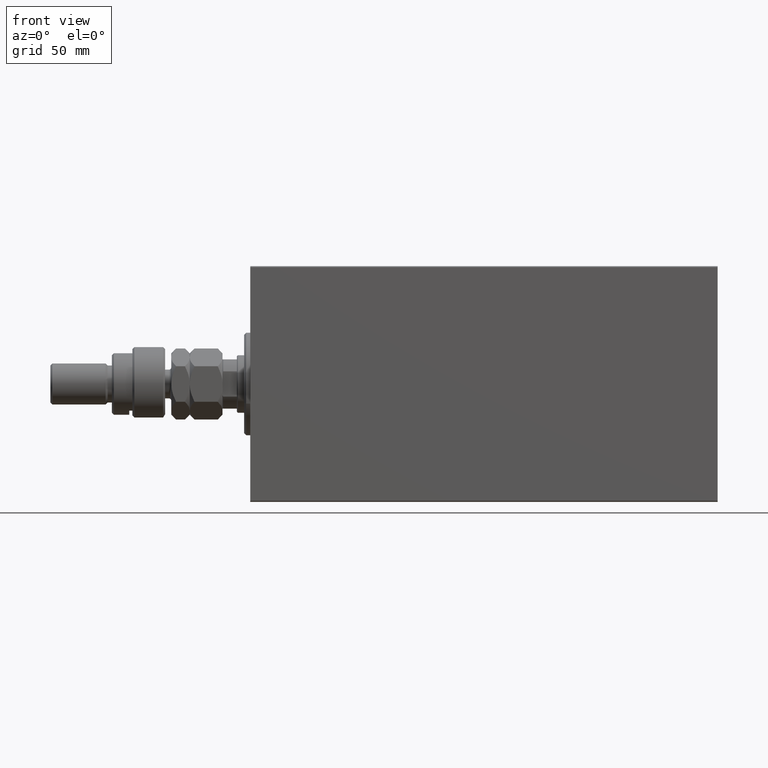
[diagram: clean part render]
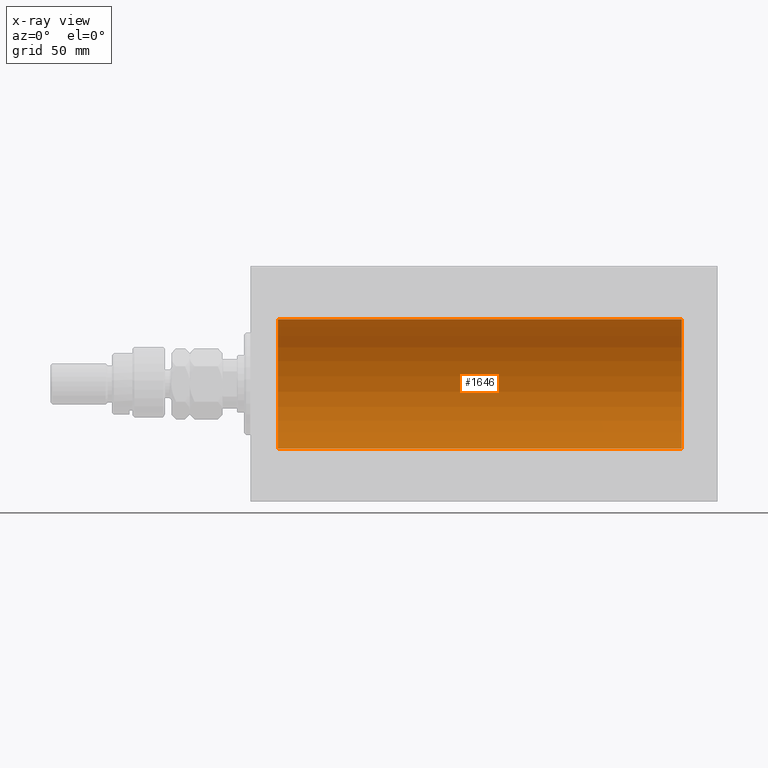
[diagram: x-ray — body ghosted, one internal face saturated and labeled with its STEP entity id]
A machine part, front view, then the same camera in x-ray: the body is ghosted and one INTERNAL B-rep face — a face not visible from any outside direction — is saturated and labeled: STEP entity #1646.
In plain terms, the highlighted cylindrical surface (partial cylindrical patch) has radius 31.5 mm, axis along (-1, -0, -0).
Its self-contained STEP definition (entity closure, byte-faithful):
#32 = CARTESIAN_POINT ( 'NONE',  ( 210.5000000000000000, 0.000000000000000000, 0.000000000000000000 ) ) ;
#1628 = CARTESIAN_POINT ( 'NONE',  ( 210.5000000000000000, 3.857637417314161900E-15, -31.50000000000000000 ) ) ;
#1646 = ADVANCED_FACE ( 'NONE', ( #45500 ), #42431, .F. ) ;
#2614 = CARTESIAN_POINT ( 'NONE',  ( 210.5000000000000000, 0.000000000000000000, 31.50000000000000000 ) ) ;
#3203 = LINE ( 'NONE', #45894, #5734 ) ;
#3725 = AXIS2_PLACEMENT_3D ( 'NONE', #4572, #36884, #15181 ) ;
#4572 = CARTESIAN_POINT ( 'NONE',  ( 13.50000000000001243, 0.000000000000000000, 0.000000000000000000 ) ) ;
#5054 = LINE ( 'NONE', #13050, #26008 ) ;
#5734 = VECTOR ( 'NONE', #46605, 1000.000000000000000 ) ;
#7359 = DIRECTION ( 'NONE',  ( 0.000000000000000000, 0.000000000000000000, 1.000000000000000000 ) ) ;
#10204 = DIRECTION ( 'NONE',  ( -1.000000000000000000, 0.000000000000000000, 0.000000000000000000 ) ) ;
#13050 = CARTESIAN_POINT ( 'NONE',  ( 210.5000000000000000, 3.857637417314161900E-15, -31.50000000000000000 ) ) ;
#13477 = EDGE_CURVE ( 'NONE', #23909, #17164, #5054, .T. ) ;
#14921 = EDGE_CURVE ( 'NONE', #17999, #23909, #44101, .T. ) ;
#15181 = DIRECTION ( 'NONE',  ( 0.000000000000000000, 0.000000000000000000, 1.000000000000000000 ) ) ;
#17164 = VERTEX_POINT ( 'NONE', #44037 ) ;
#17999 = VERTEX_POINT ( 'NONE', #2614 ) ;
#20541 = CARTESIAN_POINT ( 'NONE',  ( 13.50000000000001243, 0.000000000000000000, 31.50000000000000000 ) ) ;
#23187 = ORIENTED_EDGE ( 'NONE', *, *, #46113, .T. ) ;
#23909 = VERTEX_POINT ( 'NONE', #1628 ) ;
#24073 = CIRCLE ( 'NONE', #3725, 31.50000000000000000 ) ;
#24526 = DIRECTION ( 'NONE',  ( -1.000000000000000000, -0.000000000000000000, -0.000000000000000000 ) ) ;
#26008 = VECTOR ( 'NONE', #27008, 1000.000000000000000 ) ;
#26090 = EDGE_CURVE ( 'NONE', #38071, #17164, #24073, .T. ) ;
#27008 = DIRECTION ( 'NONE',  ( -1.000000000000000000, -0.000000000000000000, -0.000000000000000000 ) ) ;
#27527 = AXIS2_PLACEMENT_3D ( 'NONE', #32, #10204, #7359 ) ;
#28305 = CARTESIAN_POINT ( 'NONE',  ( 210.5000000000000000, 0.000000000000000000, 0.000000000000000000 ) ) ;
#34981 = EDGE_LOOP ( 'NONE', ( #39789, #37135, #23187, #43597 ) ) ;
#36884 = DIRECTION ( 'NONE',  ( -1.000000000000000000, 0.000000000000000000, 0.000000000000000000 ) ) ;
#37135 = ORIENTED_EDGE ( 'NONE', *, *, #14921, .F. ) ;
#38071 = VERTEX_POINT ( 'NONE', #20541 ) ;
#39288 = AXIS2_PLACEMENT_3D ( 'NONE', #28305, #24526, #42670 ) ;
#39789 = ORIENTED_EDGE ( 'NONE', *, *, #13477, .F. ) ;
#42431 = CYLINDRICAL_SURFACE ( 'NONE', #39288, 31.50000000000000000 ) ;
#42670 = DIRECTION ( 'NONE',  ( 0.000000000000000000, 0.000000000000000000, 1.000000000000000000 ) ) ;
#43597 = ORIENTED_EDGE ( 'NONE', *, *, #26090, .T. ) ;
#44037 = CARTESIAN_POINT ( 'NONE',  ( 13.50000000000001243, 3.857637417314161900E-15, -31.50000000000000000 ) ) ;
#44101 = CIRCLE ( 'NONE', #27527, 31.50000000000000000 ) ;
#45500 = FACE_OUTER_BOUND ( 'NONE', #34981, .T. ) ;
#45894 = CARTESIAN_POINT ( 'NONE',  ( 210.5000000000000000, 0.000000000000000000, 31.50000000000000000 ) ) ;
#46113 = EDGE_CURVE ( 'NONE', #17999, #38071, #3203, .T. ) ;
#46605 = DIRECTION ( 'NONE',  ( -1.000000000000000000, -0.000000000000000000, -0.000000000000000000 ) ) ;